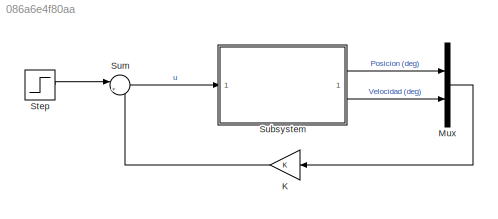
MODEL slx_086a6e4f80aa
KIND model
CONFIG AbsTol = auto
CONFIG EnableMultiTasking = off
CONFIG FixedStep = auto
CONFIG MaxStep = auto
CONFIG MinStep = auto
CONFIG RelTol = 1e-3
CONFIG SampleTimeConstraint = Unconstrained
CONFIG SolverName = VariableStepAuto
CONFIG StartTime = 0.0
CONFIG StopTime = 10.0
BLOCK [Gain] K
  Gain = K
  Multiplication = Matrix(K*u)
BLOCK [Mux] Mux
  DisplayOption = bar
  Inputs = 2
BLOCK [Step] Step
  SampleTime = 0
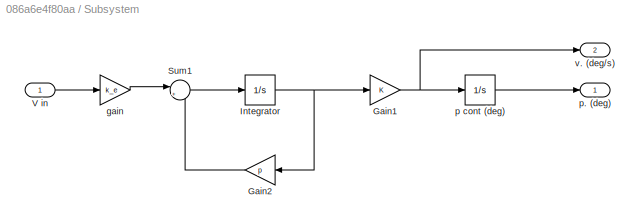
BLOCK [SubSystem] Subsystem
BLOCK [Gain] Subsystem/Gain1
BLOCK [Gain] Subsystem/Gain2
  Gain = p
BLOCK [Integrator] Subsystem/Integrator
BLOCK [Sum] Subsystem/Sum1
  Inputs = |++
BLOCK [Inport] Subsystem/V in
BLOCK [Gain] Subsystem/gain
  Gain = k_e
BLOCK [Integrator] Subsystem/p cont (deg)
BLOCK [Outport] Subsystem/p. (deg)
BLOCK [Outport] Subsystem/v. (deg//s)
  Port = 2
BLOCK [Sum] Sum
  Inputs = |+-
LINE K:1 -> Sum:2
LINE Mux:1 -> K:1
LINE Step:1 -> Sum:1
NET Subsystem/Gain1:1 -> Subsystem/p cont (deg):1, Subsystem/v. (deg//s):1
LINE Subsystem/Gain2:1 -> Subsystem/Sum1:2
NET Subsystem/Integrator:1 -> Subsystem/Gain1:1, Subsystem/Gain2:1
LINE Subsystem/Sum1:1 -> Subsystem/Integrator:1
LINE Subsystem/V in:1 -> Subsystem/gain:1
LINE Subsystem/gain:1 -> Subsystem/Sum1:1
LINE Subsystem/p cont (deg):1 -> Subsystem/p. (deg):1
LINE Subsystem:1 -> Mux:1
LINE Subsystem:2 -> Mux:2
LINE Sum:1 -> Subsystem:1
note: NET lines group one-source signal fan-out (src -> all destinations, sorted); 1:1 wires keep LINE
